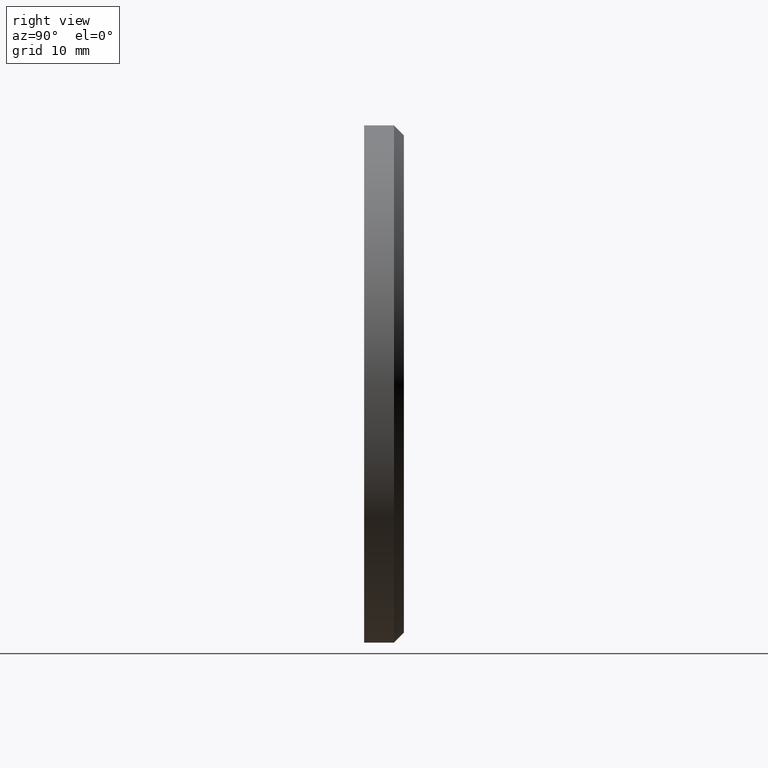
[diagram: clean part render]
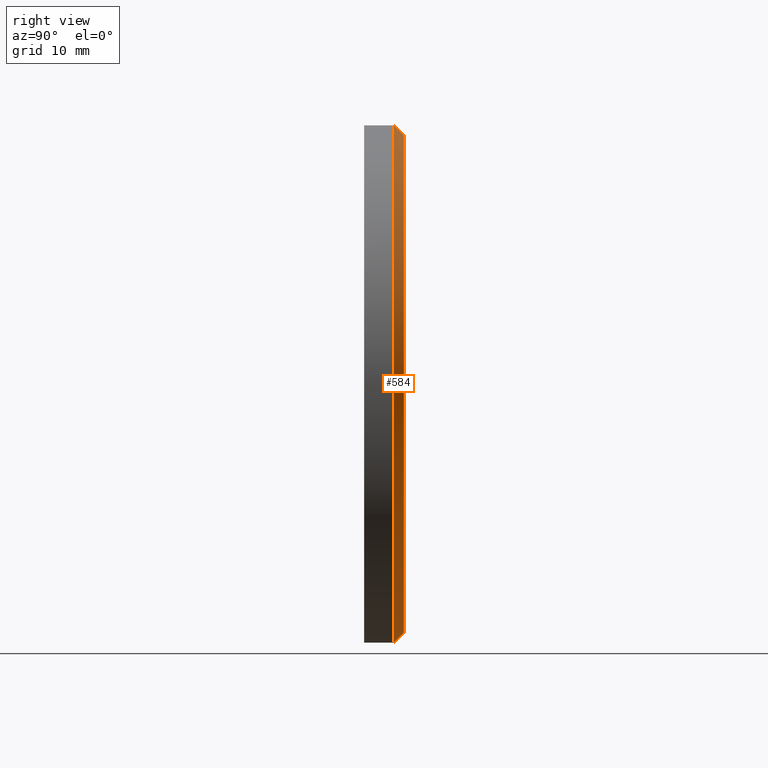
[diagram: same view with one face highlighted and labeled with its STEP entity id]
A machine part, right view. The second image highlights one B-rep face of the part: STEP entity #584.
In plain terms, the highlighted conical surface has half-angle 45 deg.
Its self-contained STEP definition (entity closure, byte-faithful):
#16 = DIRECTION ( 'NONE',  ( 0.000000000000000000, 0.000000000000000000, -1.000000000000000000 ) ) ;
#63 = DIRECTION ( 'NONE',  ( 0.000000000000000000, -1.000000000000000000, 0.000000000000000000 ) ) ;
#278 = CARTESIAN_POINT ( 'NONE',  ( 0.000000000000000000, 2.000000000000000000, -25.00000000000001421 ) ) ;
#565 = ORIENTED_EDGE ( 'NONE', *, *, #12949, .F. ) ;
#584 = ADVANCED_FACE ( 'NONE', ( #5846 ), #11250, .T. ) ;
#870 = DIRECTION ( 'NONE',  ( 8.659560562354932858E-17, -0.7071067811865474617, 0.7071067811865474617 ) ) ;
#880 = EDGE_CURVE ( 'NONE', #1434, #5705, #12685, .T. ) ;
#1434 = VERTEX_POINT ( 'NONE', #2389 ) ;
#1678 = DIRECTION ( 'NONE',  ( 0.000000000000000000, 0.000000000000000000, 1.000000000000000000 ) ) ;
#2389 = CARTESIAN_POINT ( 'NONE',  ( 0.000000000000000000, 1.000000000000013101, -26.00000000000000355 ) ) ;
#3221 = LINE ( 'NONE', #7125, #12065 ) ;
#3529 = CARTESIAN_POINT ( 'NONE',  ( 0.000000000000000000, 2.000000000000000000, 0.000000000000000000 ) ) ;
#3841 = CIRCLE ( 'NONE', #10039, 25.00000000000001421 ) ;
#3885 = EDGE_CURVE ( 'NONE', #4814, #8235, #3841, .T. ) ;
#3971 = CARTESIAN_POINT ( 'NONE',  ( 0.000000000000000000, 1.000000000000013101, 0.000000000000000000 ) ) ;
#4814 = VERTEX_POINT ( 'NONE', #10051 ) ;
#5143 = ORIENTED_EDGE ( 'NONE', *, *, #3885, .F. ) ;
#5705 = VERTEX_POINT ( 'NONE', #6546 ) ;
#5827 = DIRECTION ( 'NONE',  ( 0.000000000000000000, -0.7071067811865474617, -0.7071067811865474617 ) ) ;
#5846 = FACE_OUTER_BOUND ( 'NONE', #12163, .T. ) ;
#6546 = CARTESIAN_POINT ( 'NONE',  ( 3.184081677783118585E-15, 1.000000000000013101, 26.00000000000000355 ) ) ;
#7125 = CARTESIAN_POINT ( 'NONE',  ( 0.000000000000000000, 2.000000000000000000, -25.00000000000001421 ) ) ;
#7804 = CARTESIAN_POINT ( 'NONE',  ( 3.061616997868384620E-15, 2.000000000000000000, 25.00000000000001421 ) ) ;
#8235 = VERTEX_POINT ( 'NONE', #278 ) ;
#8639 = DIRECTION ( 'NONE',  ( 0.000000000000000000, -1.000000000000000000, 0.000000000000000000 ) ) ;
#8776 = EDGE_CURVE ( 'NONE', #4814, #5705, #12297, .T. ) ;
#9065 = CARTESIAN_POINT ( 'NONE',  ( 0.000000000000000000, 2.000000000000000000, 0.000000000000000000 ) ) ;
#10039 = AXIS2_PLACEMENT_3D ( 'NONE', #9065, #13688, #14680 ) ;
#10051 = CARTESIAN_POINT ( 'NONE',  ( 3.122849337825751406E-15, 2.000000000000000000, 25.00000000000001421 ) ) ;
#10840 = ORIENTED_EDGE ( 'NONE', *, *, #8776, .T. ) ;
#11250 = CONICAL_SURFACE ( 'NONE', #14557, 25.00000000000001421, 0.7853981633974482790 ) ;
#12065 = VECTOR ( 'NONE', #5827, 1000.000000000000114 ) ;
#12163 = EDGE_LOOP ( 'NONE', ( #5143, #10840, #12472, #565 ) ) ;
#12297 = LINE ( 'NONE', #7804, #14261 ) ;
#12472 = ORIENTED_EDGE ( 'NONE', *, *, #880, .F. ) ;
#12685 = CIRCLE ( 'NONE', #14288, 26.00000000000000355 ) ;
#12949 = EDGE_CURVE ( 'NONE', #8235, #1434, #3221, .T. ) ;
#13688 = DIRECTION ( 'NONE',  ( 0.000000000000000000, 1.000000000000000000, 0.000000000000000000 ) ) ;
#14261 = VECTOR ( 'NONE', #870, 1000.000000000000114 ) ;
#14288 = AXIS2_PLACEMENT_3D ( 'NONE', #3971, #8639, #1678 ) ;
#14557 = AXIS2_PLACEMENT_3D ( 'NONE', #3529, #63, #16 ) ;
#14680 = DIRECTION ( 'NONE',  ( 0.000000000000000000, 0.000000000000000000, 1.000000000000000000 ) ) ;